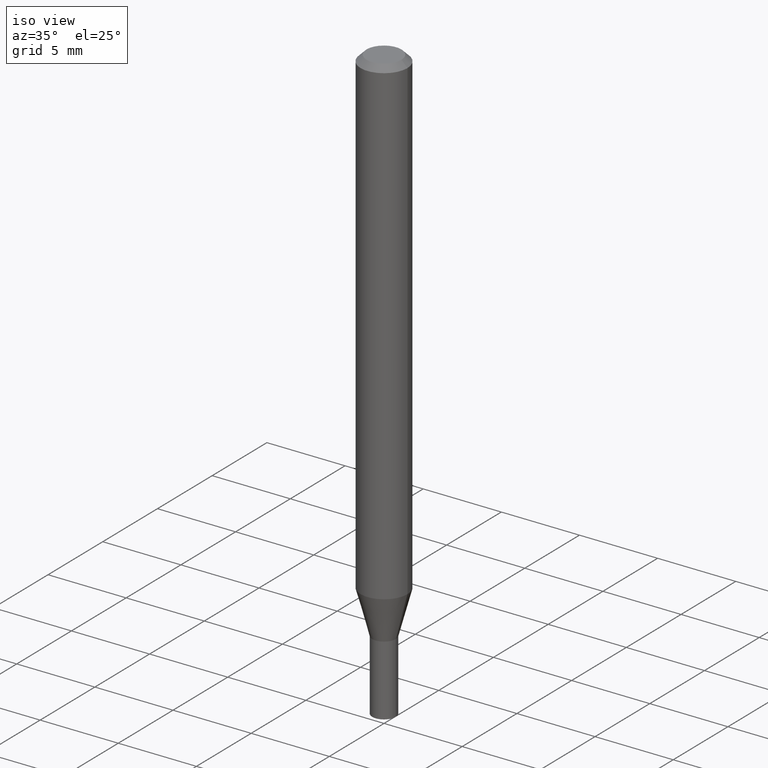
[diagram: clean part render]
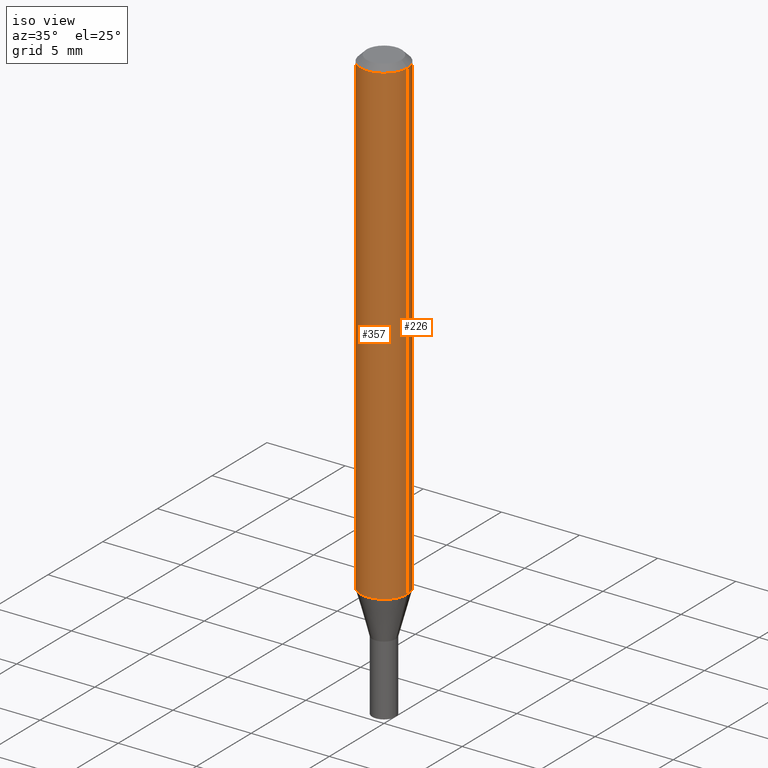
[diagram: same view with one multi-face feature highlighted, each face labeled with its STEP entity id]
A machine part, iso view. The highlighted faces form ONE feature: a constant-radius fillet chain: 2 tangent blend faces with common blend radius 1.4999 mm. The faces share edges in the B-rep.
Their STEP definitions:
[1] entity #226 (Cylinder):
#1 = CARTESIAN_POINT ( 'NONE',  ( 0.000000000000000000, 0.000000000000000000, 0.000000000000000000 ) ) ;
#12 = DIRECTION ( 'NONE',  ( 1.000000000000000000, -6.982962677686273021E-15, 0.000000000000000000 ) ) ;
#33 = CYLINDRICAL_SURFACE ( 'NONE', #45, 0.05904999999999999832 ) ;
#45 = AXIS2_PLACEMENT_3D ( 'NONE', #1, #50, #200 ) ;
#46 = CARTESIAN_POINT ( 'NONE',  ( 2.965631028747970028E-29, -4.234135135389597001E-15, -1.212704501176718130 ) ) ;
#50 = DIRECTION ( 'NONE',  ( -2.445468806185136597E-29, 3.491481338843145583E-15, 1.000000000000000000 ) ) ;
#52 = DIRECTION ( 'NONE',  ( -2.445468806185136597E-29, 3.491481338843145583E-15, 1.000000000000000000 ) ) ;
#84 = CARTESIAN_POINT ( 'NONE',  ( -0.05904999999999999832, 4.195754854663391478E-16, -2.904631170795521892E-30 ) ) ;
#89 = LINE ( 'NONE', #84, #314 ) ;
#112 = EDGE_CURVE ( 'NONE', #358, #320, #224, .T. ) ;
#117 = AXIS2_PLACEMENT_3D ( 'NONE', #196, #420, #175 ) ;
#129 = ORIENTED_EDGE ( 'NONE', *, *, #112, .F. ) ;
#152 = DIRECTION ( 'NONE',  ( -2.445468806185136877E-29, 3.491481338843145188E-15, 1.000000000000000000 ) ) ;
#162 = CARTESIAN_POINT ( 'NONE',  ( 0.05904999999999999832, -4.647161662000212105E-16, -0.01499999999999999944 ) ) ;
#165 = CIRCLE ( 'NONE', #117, 0.05904999999999999832 ) ;
#174 = VERTEX_POINT ( 'NONE', #339 ) ;
#175 = DIRECTION ( 'NONE',  ( 1.000000000000000000, -6.982962677686266711E-15, 0.000000000000000000 ) ) ;
#184 = CARTESIAN_POINT ( 'NONE',  ( 0.05904999999999999832, -4.123439461173740327E-16, 2.879382386107500220E-30 ) ) ;
#196 = CARTESIAN_POINT ( 'NONE',  ( 3.668203209277705088E-31, -5.237222008264718399E-17, -0.01499999999999999944 ) ) ;
#200 = DIRECTION ( 'NONE',  ( 1.000000000000000000, -6.982962677686266711E-15, 4.876176775795936353E-29 ) ) ;
#209 = VERTEX_POINT ( 'NONE', #259 ) ;
#213 = AXIS2_PLACEMENT_3D ( 'NONE', #46, #52, #12 ) ;
#224 = LINE ( 'NONE', #184, #386 ) ;
#226 = ADVANCED_FACE ( 'NONE', ( #365 ), #33, .T. ) ;
#243 = EDGE_LOOP ( 'NONE', ( #462, #289, #274, #129 ) ) ;
#246 = EDGE_CURVE ( 'NONE', #174, #209, #89, .T. ) ;
#259 = CARTESIAN_POINT ( 'NONE',  ( -0.05904999999999999832, -1.723678192269782942E-15, -0.01499999999999999944 ) ) ;
#274 = ORIENTED_EDGE ( 'NONE', *, *, #389, .F. ) ;
#289 = ORIENTED_EDGE ( 'NONE', *, *, #246, .T. ) ;
#292 = EDGE_CURVE ( 'NONE', #358, #174, #376, .T. ) ;
#310 = CARTESIAN_POINT ( 'NONE',  ( 0.05904999999999999832, -4.646479081506971132E-15, -1.212704501176718130 ) ) ;
#314 = VECTOR ( 'NONE', #353, 39.37007874015748143 ) ;
#320 = VERTEX_POINT ( 'NONE', #162 ) ;
#339 = CARTESIAN_POINT ( 'NONE',  ( -0.05904999999999999832, -3.814559649923256719E-15, -1.212704501176718130 ) ) ;
#353 = DIRECTION ( 'NONE',  ( -2.445468806185136877E-29, 3.491481338843145188E-15, 1.000000000000000000 ) ) ;
#358 = VERTEX_POINT ( 'NONE', #310 ) ;
#365 = FACE_OUTER_BOUND ( 'NONE', #243, .T. ) ;
#376 = CIRCLE ( 'NONE', #213, 0.05904999999999999832 ) ;
#386 = VECTOR ( 'NONE', #152, 39.37007874015748143 ) ;
#389 = EDGE_CURVE ( 'NONE', #320, #209, #165, .T. ) ;
#420 = DIRECTION ( 'NONE',  ( -2.445468806185136597E-29, 3.491481338843145583E-15, 1.000000000000000000 ) ) ;
#462 = ORIENTED_EDGE ( 'NONE', *, *, #292, .T. ) ;
[2] entity #357 (Cylinder):
#8 = CIRCLE ( 'NONE', #194, 0.05904999999999999832 ) ;
#84 = CARTESIAN_POINT ( 'NONE',  ( -0.05904999999999999832, 4.195754854663391478E-16, -2.904631170795521892E-30 ) ) ;
#86 = DIRECTION ( 'NONE',  ( 1.000000000000000000, -6.982962677686266711E-15, 4.876176775795936353E-29 ) ) ;
#89 = LINE ( 'NONE', #84, #314 ) ;
#103 = ORIENTED_EDGE ( 'NONE', *, *, #112, .T. ) ;
#112 = EDGE_CURVE ( 'NONE', #358, #320, #224, .T. ) ;
#137 = ORIENTED_EDGE ( 'NONE', *, *, #261, .T. ) ;
#152 = DIRECTION ( 'NONE',  ( -2.445468806185136877E-29, 3.491481338843145188E-15, 1.000000000000000000 ) ) ;
#160 = ORIENTED_EDGE ( 'NONE', *, *, #246, .F. ) ;
#162 = CARTESIAN_POINT ( 'NONE',  ( 0.05904999999999999832, -4.647161662000212105E-16, -0.01499999999999999944 ) ) ;
#166 = FACE_OUTER_BOUND ( 'NONE', #350, .T. ) ;
#167 = EDGE_CURVE ( 'NONE', #209, #320, #8, .T. ) ;
#174 = VERTEX_POINT ( 'NONE', #339 ) ;
#184 = CARTESIAN_POINT ( 'NONE',  ( 0.05904999999999999832, -4.123439461173740327E-16, 2.879382386107500220E-30 ) ) ;
#194 = AXIS2_PLACEMENT_3D ( 'NONE', #406, #371, #375 ) ;
#209 = VERTEX_POINT ( 'NONE', #259 ) ;
#224 = LINE ( 'NONE', #184, #386 ) ;
#237 = AXIS2_PLACEMENT_3D ( 'NONE', #348, #271, #241 ) ;
#241 = DIRECTION ( 'NONE',  ( 1.000000000000000000, -6.982962677686273021E-15, 0.000000000000000000 ) ) ;
#246 = EDGE_CURVE ( 'NONE', #174, #209, #89, .T. ) ;
#259 = CARTESIAN_POINT ( 'NONE',  ( -0.05904999999999999832, -1.723678192269782942E-15, -0.01499999999999999944 ) ) ;
#261 = EDGE_CURVE ( 'NONE', #174, #358, #436, .T. ) ;
#270 = CARTESIAN_POINT ( 'NONE',  ( 0.000000000000000000, 0.000000000000000000, 0.000000000000000000 ) ) ;
#271 = DIRECTION ( 'NONE',  ( -2.445468806185136597E-29, 3.491481338843145583E-15, 1.000000000000000000 ) ) ;
#310 = CARTESIAN_POINT ( 'NONE',  ( 0.05904999999999999832, -4.646479081506971132E-15, -1.212704501176718130 ) ) ;
#314 = VECTOR ( 'NONE', #353, 39.37007874015748143 ) ;
#320 = VERTEX_POINT ( 'NONE', #162 ) ;
#339 = CARTESIAN_POINT ( 'NONE',  ( -0.05904999999999999832, -3.814559649923256719E-15, -1.212704501176718130 ) ) ;
#348 = CARTESIAN_POINT ( 'NONE',  ( 2.965631028747970028E-29, -4.234135135389597001E-15, -1.212704501176718130 ) ) ;
#350 = EDGE_LOOP ( 'NONE', ( #160, #137, #103, #399 ) ) ;
#353 = DIRECTION ( 'NONE',  ( -2.445468806185136877E-29, 3.491481338843145188E-15, 1.000000000000000000 ) ) ;
#357 = ADVANCED_FACE ( 'NONE', ( #166 ), #418, .T. ) ;
#358 = VERTEX_POINT ( 'NONE', #310 ) ;
#371 = DIRECTION ( 'NONE',  ( -2.445468806185136597E-29, 3.491481338843145583E-15, 1.000000000000000000 ) ) ;
#375 = DIRECTION ( 'NONE',  ( 1.000000000000000000, -6.982962677686266711E-15, 0.000000000000000000 ) ) ;
#386 = VECTOR ( 'NONE', #152, 39.37007874015748143 ) ;
#399 = ORIENTED_EDGE ( 'NONE', *, *, #167, .F. ) ;
#403 = AXIS2_PLACEMENT_3D ( 'NONE', #270, #411, #86 ) ;
#406 = CARTESIAN_POINT ( 'NONE',  ( 3.668203209277705088E-31, -5.237222008264718399E-17, -0.01499999999999999944 ) ) ;
#411 = DIRECTION ( 'NONE',  ( -2.445468806185136597E-29, 3.491481338843145583E-15, 1.000000000000000000 ) ) ;
#418 = CYLINDRICAL_SURFACE ( 'NONE', #403, 0.05904999999999999832 ) ;
#436 = CIRCLE ( 'NONE', #237, 0.05904999999999999832 ) ;